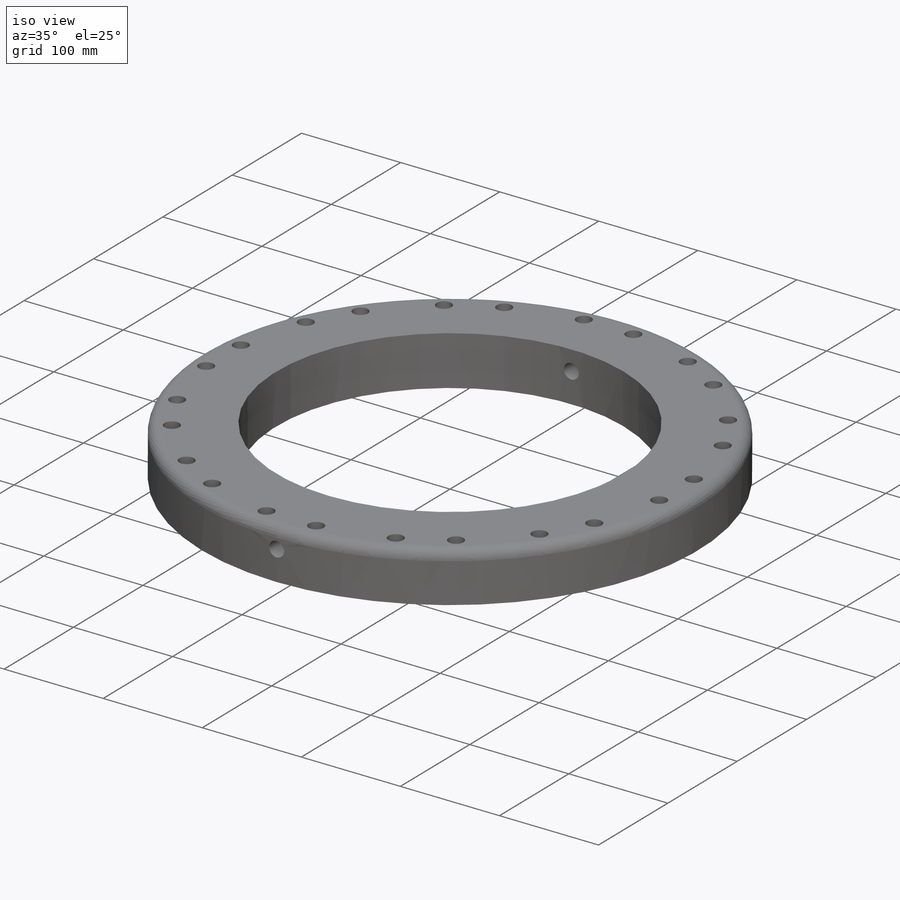
[diagram: iso view]
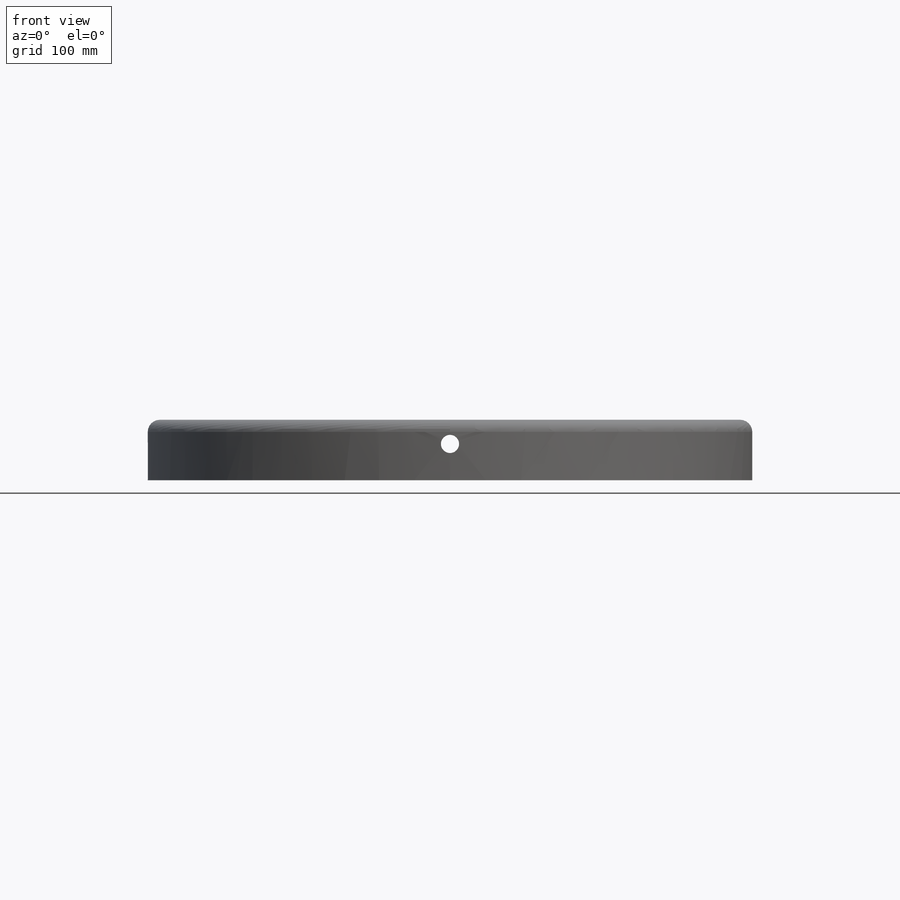
[diagram: front view]
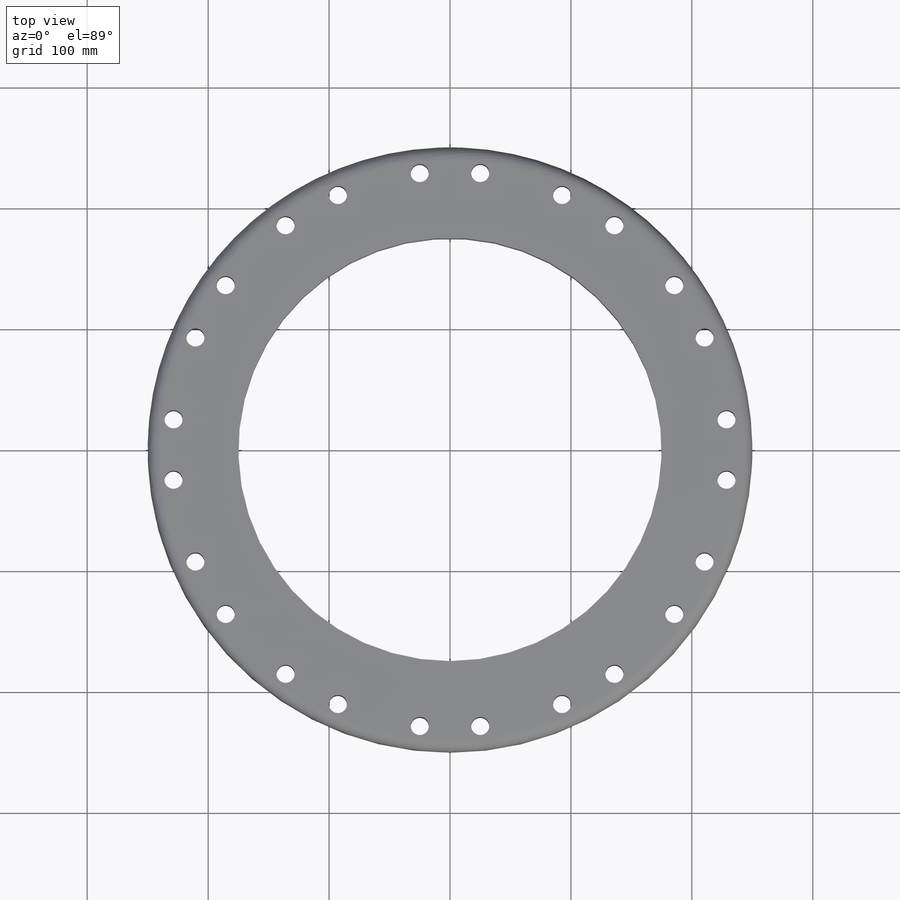
[diagram: top view]
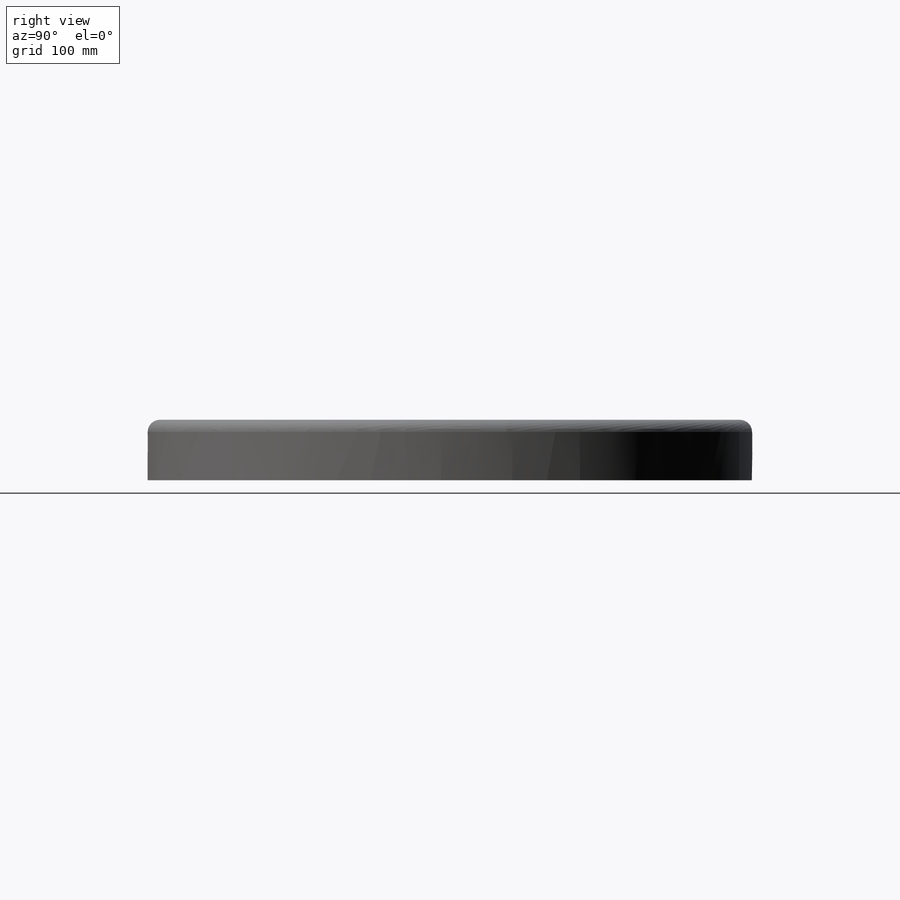
[diagram: right view]
SOLIDWORKS PART (.sldprt)
format: sldprt  version: not decoded by parser v0  size: 252,416 bytes
history: native  units: mm
features: sketch x4, plane x3, cut_extrude x3, material x1, extrude x1, fillet x1 (+10 scaffold rows collapsed)
feature tree (23):
  scaffold x10  (default folders/planes/origin — collapsed)
  material  "Materiál <není určen>"
  plane  "Přední rovina"
  plane  "Horní rovina"
  plane  "Pravá rovina"
  sketch  "Skica1"  dims[D1=500.0mm]
  extrude  "Přidat vysunutím1"  Depth=50mm
  sketch  "Skica2"  dims[c1.D1=350.0mm c1.D2=400.0mm c2.D1=100.0mm]
  cut_extrude  "Odebrat vysunutím1"  Depth=60mm
  fillet  "Zaoblit1"  Radius=10mm
  sketch  "Skica4"  dims[c1.D1=15.0mm c1.D2=25.0mm c1.D3=220.0mm c2.D3=230.0mm c2.D4=12.0]
  cut_extrude  "Odebrat vysunutím2"  [1 undecoded]
  sketch  "Skica6"  dims[D1=15.0mm D2=30.0mm]
  cut_extrude  "Odebrat vysunutím3"  Depth=80mm
decode coverage: 8 of 9 modeling features carry decoded parameters
note: 1 parameter value undecoded
note: suppression state not decoded; provenance and decode notes live in map.json
